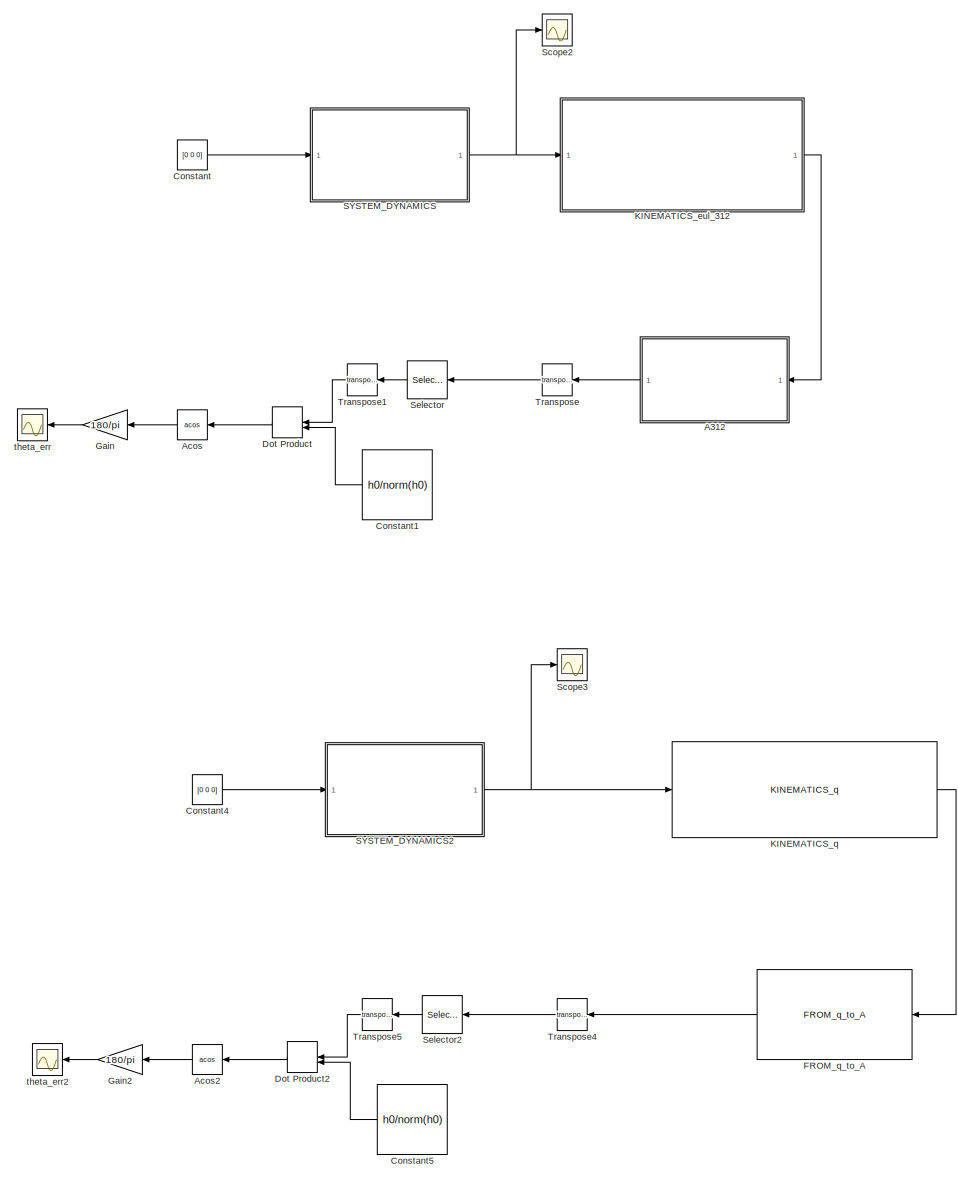
[diagram: root canvas - part 1/2, left side, full height]
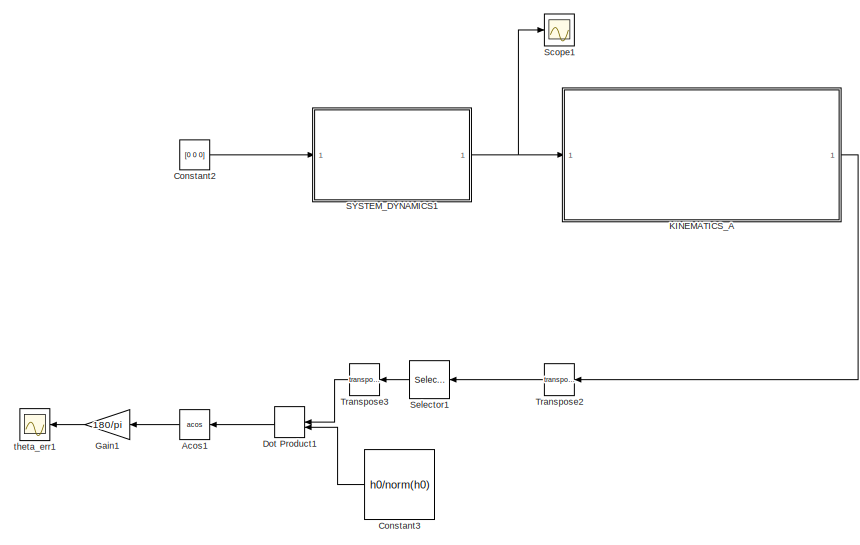
[diagram: root canvas - part 2/2, top right region]
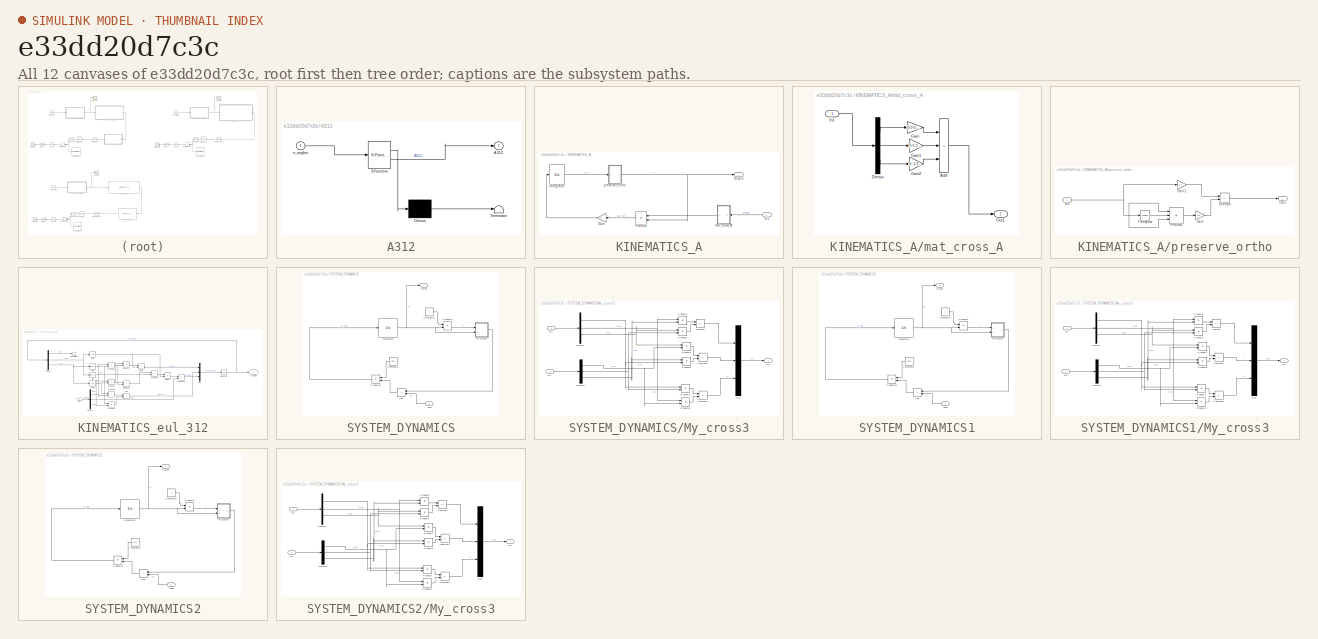
[diagram: thumbnail index - all 12 canvases of the model, root first then tree order]
MODEL slx_e33dd20d7c3c
KIND model
CONFIG AbsTol = auto
CONFIG EnableMultiTasking = off
CONFIG FixedStep = 0.01
CONFIG MaxStep = auto
CONFIG MinStep = auto
CONFIG RelTol = 1e-3
CONFIG SampleTimeConstraint = Unconstrained
CONFIG SolverName = ode8
CONFIG StartTime = 0.0
CONFIG StopTime = 100
BLOCK [SubSystem] A312
  ErrorFcn = Stateflow.Translate.translate
  PermitHierarchicalResolution = ExplicitOnly
  Ports = [1, 1]
  RequestExecContextInheritance = off
  SFBlockType = MATLAB Function
  TreatAsAtomicUnit = on
BLOCK [Demux] A312/ Demux 
  Outputs = 1
  Ports = [1, 1]
BLOCK [S-Function] A312/ SFunction 
  EnableBusSupport = on
  FunctionName = sf_sfun
  PortCounts = [1 2]
  Ports = [1, 2]
  SFcnIsStateOwnerBlock = off
  SFunctionDeploymentMode = off
  Tag = Stateflow S-Function 1
BLOCK [Terminator] A312/ Terminator 
BLOCK [Outport] A312/A312
BLOCK [Inport] A312/e_angles
BLOCK [Trigonometry] Acos
  Operator = acos
  Ports = [1, 1]
BLOCK [Trigonometry] Acos1
  Operator = acos
  Ports = [1, 1]
BLOCK [Trigonometry] Acos2
  Operator = acos
  Ports = [1, 1]
BLOCK [Constant] Constant
  Value = [0 0 0]
BLOCK [Constant] Constant1
  Value = h0/norm(h0)
BLOCK [Constant] Constant2
  Value = [0 0 0]
BLOCK [Constant] Constant3
  Value = h0/norm(h0)
BLOCK [Constant] Constant4
  Value = [0 0 0]
BLOCK [Constant] Constant5
  Value = h0/norm(h0)
BLOCK [DotProduct] Dot Product
  OutDataTypeStr = Inherit: Inherit via internal rule
BLOCK [DotProduct] Dot Product1
  OutDataTypeStr = Inherit: Inherit via internal rule
BLOCK [DotProduct] Dot Product2
  OutDataTypeStr = Inherit: Inherit via internal rule
BLOCK [Reference] FROM_q_to_A  REF=kinematic_transform/FROM_q_to_A  (lib defined in slx_aea597a4063a)
  Ports = [1, 1]
  SourceBlock = kinematic_transform/FROM_q_to_A
  SourceProductName = Kinematic Tranformation
  SourceType = SubSystem
BLOCK [Gain] Gain
  Gain = 180/pi
BLOCK [Gain] Gain1
  Gain = 180/pi
BLOCK [Gain] Gain2
  Gain = 180/pi
BLOCK [SubSystem] KINEMATICS_A
  Ports = [1, 1]
  RequestExecContextInheritance = off
BLOCK [Gain] KINEMATICS_A/Gain
  Gain = -1
BLOCK [Inport] KINEMATICS_A/In1
  IconDisplay = Signal name
BLOCK [Integrator] KINEMATICS_A/Integrator
  InitialCondition = A
  Ports = [1, 1]
BLOCK [Outport] KINEMATICS_A/Output
  IconDisplay = Signal name
BLOCK [Product] KINEMATICS_A/Product
  Multiplication = Matrix(*)
  Ports = [2, 1]
BLOCK [SubSystem] KINEMATICS_A/mat_cross_A
  Ports = [1, 1]
  RequestExecContextInheritance = off
BLOCK [Sum] KINEMATICS_A/mat_cross_A/Add
  IconShape = rectangular
  Inputs = +++
  Ports = [3, 1]
BLOCK [Demux] KINEMATICS_A/mat_cross_A/Demux
  Outputs = 3
  Ports = [1, 3]
BLOCK [Gain] KINEMATICS_A/mat_cross_A/Gain
  Gain = [0 0 0; 0 0 -1; 0 1 0]
BLOCK [Gain] KINEMATICS_A/mat_cross_A/Gain1
  Gain = [0 0 1; 0 0 0; -1 0 0]
BLOCK [Gain] KINEMATICS_A/mat_cross_A/Gain2
  Gain = [0 -1 0; 1 0 0; 0 0 0]
BLOCK [Inport] KINEMATICS_A/mat_cross_A/In1
BLOCK [Outport] KINEMATICS_A/mat_cross_A/Out1
BLOCK [SubSystem] KINEMATICS_A/preserve_ortho
  Ports = [1, 1]
  RequestExecContextInheritance = off
BLOCK [Gain] KINEMATICS_A/preserve_ortho/Gain
  Gain = 0.5
BLOCK [Gain] KINEMATICS_A/preserve_ortho/Gain1
  Gain = 1.5
BLOCK [Inport] KINEMATICS_A/preserve_ortho/In1
BLOCK [Outport] KINEMATICS_A/preserve_ortho/Out1
BLOCK [Product] KINEMATICS_A/preserve_ortho/Product1
  Inputs = 3
  Multiplication = Matrix(*)
  Ports = [3, 1]
BLOCK [Sum] KINEMATICS_A/preserve_ortho/Subtract
  IconShape = rectangular
  Inputs = +-
  Ports = [2, 1]
BLOCK [Math] KINEMATICS_A/preserve_ortho/Transpose
  Operator = transpose
  Ports = [1, 1]
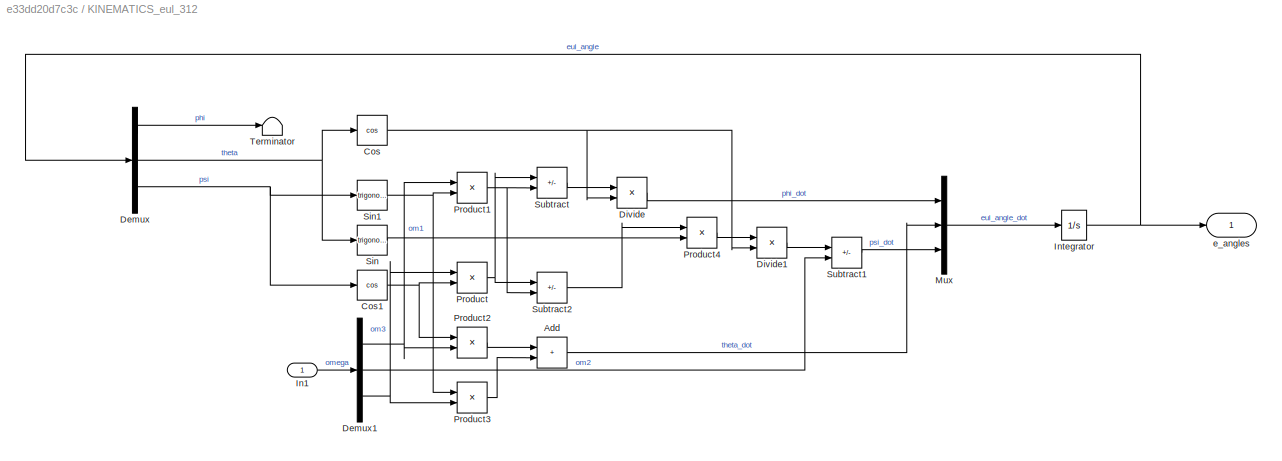
BLOCK [SubSystem] KINEMATICS_eul_312
  Ports = [1, 1]
  RequestExecContextInheritance = off
BLOCK [Sum] KINEMATICS_eul_312/Add
  IconShape = rectangular
  Ports = [2, 1]
BLOCK [Trigonometry] KINEMATICS_eul_312/Cos
  Operator = cos
  Ports = [1, 1]
BLOCK [Trigonometry] KINEMATICS_eul_312/Cos1
  Operator = cos
  Ports = [1, 1]
BLOCK [Demux] KINEMATICS_eul_312/Demux
  Outputs = 3
  Ports = [1, 3]
BLOCK [Demux] KINEMATICS_eul_312/Demux1
  Outputs = 3
  Ports = [1, 3]
BLOCK [Product] KINEMATICS_eul_312/Divide
  Inputs = */
  Ports = [2, 1]
BLOCK [Product] KINEMATICS_eul_312/Divide1
  Inputs = */
  Ports = [2, 1]
BLOCK [Inport] KINEMATICS_eul_312/In1
  IconDisplay = Signal name
BLOCK [Integrator] KINEMATICS_eul_312/Integrator
  InitialCondition = e_angles0
  Ports = [1, 1]
BLOCK [Mux] KINEMATICS_eul_312/Mux
  DisplayOption = bar
  Inputs = 3
  Ports = [3, 1]
BLOCK [Product] KINEMATICS_eul_312/Product
  Ports = [2, 1]
BLOCK [Product] KINEMATICS_eul_312/Product1
  Ports = [2, 1]
BLOCK [Product] KINEMATICS_eul_312/Product2
  Ports = [2, 1]
BLOCK [Product] KINEMATICS_eul_312/Product3
  Ports = [2, 1]
BLOCK [Product] KINEMATICS_eul_312/Product4
  Ports = [2, 1]
BLOCK [Trigonometry] KINEMATICS_eul_312/Sin
  Ports = [1, 1]
BLOCK [Trigonometry] KINEMATICS_eul_312/Sin1
  Ports = [1, 1]
BLOCK [Sum] KINEMATICS_eul_312/Subtract
  IconShape = rectangular
  Inputs = +-
  Ports = [2, 1]
BLOCK [Sum] KINEMATICS_eul_312/Subtract1
  IconShape = rectangular
  Inputs = -+
  Ports = [2, 1]
BLOCK [Sum] KINEMATICS_eul_312/Subtract2
  IconShape = rectangular
  Inputs = +-
  Ports = [2, 1]
BLOCK [Terminator] KINEMATICS_eul_312/Terminator
BLOCK [Outport] KINEMATICS_eul_312/e_angles
  IconDisplay = Signal name
BLOCK [Reference] KINEMATICS_q  REF=kinematics/KINEMATICS_q  (lib defined in mdl_2d95649a4485, slx_49f32b38500f, +2 more)
  Ports = [1, 1]
  SourceBlock = kinematics/KINEMATICS_q
  SourceType = SubSystem
BLOCK [SubSystem] SYSTEM_DYNAMICS
  Ports = [1, 1]
  RequestExecContextInheritance = off
BLOCK [Sum] SYSTEM_DYNAMICS/Add
  IconShape = rectangular
  Ports = [2, 1]
BLOCK [Constant] SYSTEM_DYNAMICS/Constant10
  Value = J
BLOCK [Constant] SYSTEM_DYNAMICS/Constant11
  Value = invJ
BLOCK [Inport] SYSTEM_DYNAMICS/Input
  IconDisplay = Signal name
BLOCK [Integrator] SYSTEM_DYNAMICS/Integrator6
  InitialCondition = omega0
  Ports = [1, 1]
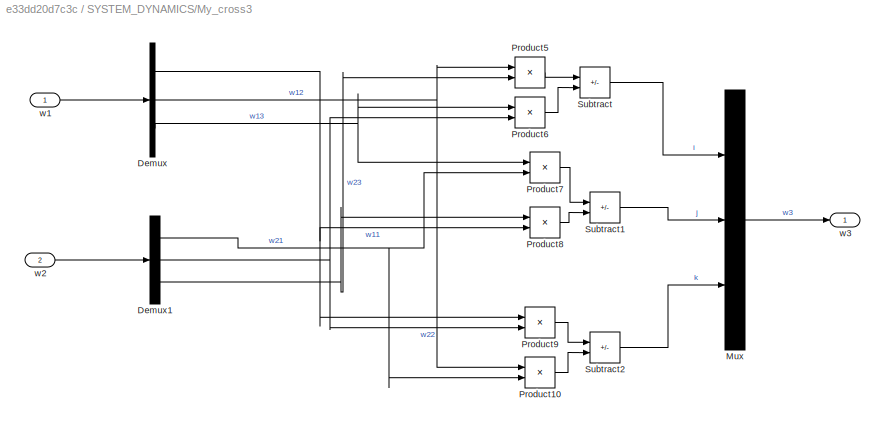
BLOCK [SubSystem] SYSTEM_DYNAMICS/My_cross3
  Ports = [2, 1]
  RequestExecContextInheritance = off
BLOCK [Demux] SYSTEM_DYNAMICS/My_cross3/Demux
  Outputs = 3
  Ports = [1, 3]
BLOCK [Demux] SYSTEM_DYNAMICS/My_cross3/Demux1
  Outputs = 3
  Ports = [1, 3]
BLOCK [Mux] SYSTEM_DYNAMICS/My_cross3/Mux
  DisplayOption = bar
  Inputs = 3
  Ports = [3, 1]
BLOCK [Product] SYSTEM_DYNAMICS/My_cross3/Product10
  Ports = [2, 1]
BLOCK [Product] SYSTEM_DYNAMICS/My_cross3/Product5
  Ports = [2, 1]
BLOCK [Product] SYSTEM_DYNAMICS/My_cross3/Product6
  Ports = [2, 1]
BLOCK [Product] SYSTEM_DYNAMICS/My_cross3/Product7
  Ports = [2, 1]
BLOCK [Product] SYSTEM_DYNAMICS/My_cross3/Product8
  Ports = [2, 1]
BLOCK [Product] SYSTEM_DYNAMICS/My_cross3/Product9
  Ports = [2, 1]
BLOCK [Sum] SYSTEM_DYNAMICS/My_cross3/Subtract
  IconShape = rectangular
  Inputs = +-
  Ports = [2, 1]
BLOCK [Sum] SYSTEM_DYNAMICS/My_cross3/Subtract1
  IconShape = rectangular
  Inputs = +-
  Ports = [2, 1]
BLOCK [Sum] SYSTEM_DYNAMICS/My_cross3/Subtract2
  IconShape = rectangular
  Inputs = +-
  Ports = [2, 1]
BLOCK [Inport] SYSTEM_DYNAMICS/My_cross3/w1
BLOCK [Inport] SYSTEM_DYNAMICS/My_cross3/w2
  Port = 2
BLOCK [Outport] SYSTEM_DYNAMICS/My_cross3/w3
BLOCK [Outport] SYSTEM_DYNAMICS/Output
  IconDisplay = Signal name
BLOCK [Product] SYSTEM_DYNAMICS/Product10
  Multiplication = Matrix(*)
  Ports = [2, 1]
BLOCK [Product] SYSTEM_DYNAMICS/Product9
  Multiplication = Matrix(*)
  Ports = [2, 1]
BLOCK [SubSystem] SYSTEM_DYNAMICS1
  Ports = [1, 1]
  RequestExecContextInheritance = off
BLOCK [Sum] SYSTEM_DYNAMICS1/Add
  IconShape = rectangular
  Ports = [2, 1]
BLOCK [Constant] SYSTEM_DYNAMICS1/Constant10
  Value = J
BLOCK [Constant] SYSTEM_DYNAMICS1/Constant11
  Value = invJ
BLOCK [Inport] SYSTEM_DYNAMICS1/Input
  IconDisplay = Signal name
BLOCK [Integrator] SYSTEM_DYNAMICS1/Integrator6
  InitialCondition = omega0
  Ports = [1, 1]
BLOCK [SubSystem] SYSTEM_DYNAMICS1/My_cross3
  Ports = [2, 1]
  RequestExecContextInheritance = off
BLOCK [Demux] SYSTEM_DYNAMICS1/My_cross3/Demux
  Outputs = 3
  Ports = [1, 3]
BLOCK [Demux] SYSTEM_DYNAMICS1/My_cross3/Demux1
  Outputs = 3
  Ports = [1, 3]
BLOCK [Mux] SYSTEM_DYNAMICS1/My_cross3/Mux
  DisplayOption = bar
  Inputs = 3
  Ports = [3, 1]
BLOCK [Product] SYSTEM_DYNAMICS1/My_cross3/Product10
  Ports = [2, 1]
BLOCK [Product] SYSTEM_DYNAMICS1/My_cross3/Product5
  Ports = [2, 1]
BLOCK [Product] SYSTEM_DYNAMICS1/My_cross3/Product6
  Ports = [2, 1]
BLOCK [Product] SYSTEM_DYNAMICS1/My_cross3/Product7
  Ports = [2, 1]
BLOCK [Product] SYSTEM_DYNAMICS1/My_cross3/Product8
  Ports = [2, 1]
BLOCK [Product] SYSTEM_DYNAMICS1/My_cross3/Product9
  Ports = [2, 1]
BLOCK [Sum] SYSTEM_DYNAMICS1/My_cross3/Subtract
  IconShape = rectangular
  Inputs = +-
  Ports = [2, 1]
BLOCK [Sum] SYSTEM_DYNAMICS1/My_cross3/Subtract1
  IconShape = rectangular
  Inputs = +-
  Ports = [2, 1]
BLOCK [Sum] SYSTEM_DYNAMICS1/My_cross3/Subtract2
  IconShape = rectangular
  Inputs = +-
  Ports = [2, 1]
BLOCK [Inport] SYSTEM_DYNAMICS1/My_cross3/w1
BLOCK [Inport] SYSTEM_DYNAMICS1/My_cross3/w2
  Port = 2
BLOCK [Outport] SYSTEM_DYNAMICS1/My_cross3/w3
BLOCK [Outport] SYSTEM_DYNAMICS1/Output
  IconDisplay = Signal name
BLOCK [Product] SYSTEM_DYNAMICS1/Product10
  Multiplication = Matrix(*)
  Ports = [2, 1]
BLOCK [Product] SYSTEM_DYNAMICS1/Product9
  Multiplication = Matrix(*)
  Ports = [2, 1]
BLOCK [SubSystem] SYSTEM_DYNAMICS2
  Ports = [1, 1]
  RequestExecContextInheritance = off
BLOCK [Sum] SYSTEM_DYNAMICS2/Add
  IconShape = rectangular
  Ports = [2, 1]
BLOCK [Constant] SYSTEM_DYNAMICS2/Constant10
  Value = J
BLOCK [Constant] SYSTEM_DYNAMICS2/Constant11
  Value = invJ
BLOCK [Inport] SYSTEM_DYNAMICS2/Input
  IconDisplay = Signal name
BLOCK [Integrator] SYSTEM_DYNAMICS2/Integrator6
  InitialCondition = omega0
  Ports = [1, 1]
BLOCK [SubSystem] SYSTEM_DYNAMICS2/My_cross3
  Ports = [2, 1]
  RequestExecContextInheritance = off
BLOCK [Demux] SYSTEM_DYNAMICS2/My_cross3/Demux
  Outputs = 3
  Ports = [1, 3]
BLOCK [Demux] SYSTEM_DYNAMICS2/My_cross3/Demux1
  Outputs = 3
  Ports = [1, 3]
BLOCK [Mux] SYSTEM_DYNAMICS2/My_cross3/Mux
  DisplayOption = bar
  Inputs = 3
  Ports = [3, 1]
BLOCK [Product] SYSTEM_DYNAMICS2/My_cross3/Product10
  Ports = [2, 1]
BLOCK [Product] SYSTEM_DYNAMICS2/My_cross3/Product5
  Ports = [2, 1]
BLOCK [Product] SYSTEM_DYNAMICS2/My_cross3/Product6
  Ports = [2, 1]
BLOCK [Product] SYSTEM_DYNAMICS2/My_cross3/Product7
  Ports = [2, 1]
BLOCK [Product] SYSTEM_DYNAMICS2/My_cross3/Product8
  Ports = [2, 1]
BLOCK [Product] SYSTEM_DYNAMICS2/My_cross3/Product9
  Ports = [2, 1]
BLOCK [Sum] SYSTEM_DYNAMICS2/My_cross3/Subtract
  IconShape = rectangular
  Inputs = +-
  Ports = [2, 1]
BLOCK [Sum] SYSTEM_DYNAMICS2/My_cross3/Subtract1
  IconShape = rectangular
  Inputs = +-
  Ports = [2, 1]
BLOCK [Sum] SYSTEM_DYNAMICS2/My_cross3/Subtract2
  IconShape = rectangular
  Inputs = +-
  Ports = [2, 1]
BLOCK [Inport] SYSTEM_DYNAMICS2/My_cross3/w1
BLOCK [Inport] SYSTEM_DYNAMICS2/My_cross3/w2
  Port = 2
BLOCK [Outport] SYSTEM_DYNAMICS2/My_cross3/w3
BLOCK [Outport] SYSTEM_DYNAMICS2/Output
  IconDisplay = Signal name
BLOCK [Product] SYSTEM_DYNAMICS2/Product10
  Multiplication = Matrix(*)
  Ports = [2, 1]
BLOCK [Product] SYSTEM_DYNAMICS2/Product9
  Multiplication = Matrix(*)
  Ports = [2, 1]
BLOCK [Scope] Scope1
  Floating = off
  NumInputPorts = 1
  Ports = [1]
  ScopeSpecificationString = Simulink.scopes.TimeScopeBlockCfg('CurrentConfiguration', extmgr.ConfigurationSet(extmgr.Configuration('Core','General UI',true),extmgr.Configuration('Core','Source UI',true),extmgr.Configuration('Sources','WiredSimulink',true,'DataLoggingVariableName','ScopeData1'),extmgr.Configuration('Visuals','Time Domain',true,'SerializedDisplays',{struct('MinYLimReal','-0.27762','MaxYLimReal','0.90691','YLab...<+1446ch>
BLOCK [Scope] Scope2
  Floating = off
  NumInputPorts = 1
  Ports = [1]
  ScopeSpecificationString = Simulink.scopes.TimeScopeBlockCfg('CurrentConfiguration', extmgr.ConfigurationSet(extmgr.Configuration('Core','General UI',true),extmgr.Configuration('Core','Source UI',true),extmgr.Configuration('Sources','WiredSimulink',true,'DataLoggingVariableName','ScopeData1'),extmgr.Configuration('Visuals','Time Domain',true,'SerializedDisplays',{struct('MinYLimReal','-0.27762','MaxYLimReal','0.90691','YLab...<+1443ch>
BLOCK [Scope] Scope3
  Floating = off
  NumInputPorts = 1
  Ports = [1]
  ScopeSpecificationString = Simulink.scopes.TimeScopeBlockCfg('CurrentConfiguration', extmgr.ConfigurationSet(extmgr.Configuration('Core','General UI',true),extmgr.Configuration('Core','Source UI',true),extmgr.Configuration('Sources','WiredSimulink',true,'DataLoggingVariableName','ScopeData1'),extmgr.Configuration('Visuals','Time Domain',true,'SerializedDisplays',{struct('MinYLimReal','-0.27762','MaxYLimReal','0.90691','YLab...<+1446ch>
BLOCK [Selector] Selector
  IndexOptions = Index vector (dialog),Select all
  Indices = 1,1
  InputPortWidth = 3
  NumberOfDimensions = 2
  OutputSizes = 1,1
  Ports = [1, 1]
BLOCK [Selector] Selector1
  IndexOptions = Index vector (dialog),Select all
  Indices = 1,1
  InputPortWidth = 3
  NumberOfDimensions = 2
  OutputSizes = 1,1
  Ports = [1, 1]
BLOCK [Selector] Selector2
  IndexOptions = Index vector (dialog),Select all
  Indices = 1,1
  InputPortWidth = 3
  NumberOfDimensions = 2
  OutputSizes = 1,1
  Ports = [1, 1]
BLOCK [Math] Transpose
  Operator = transpose
  Ports = [1, 1]
BLOCK [Math] Transpose1
  Operator = transpose
  Ports = [1, 1]
BLOCK [Math] Transpose2
  Operator = transpose
  Ports = [1, 1]
BLOCK [Math] Transpose3
  Operator = transpose
  Ports = [1, 1]
BLOCK [Math] Transpose4
  Operator = transpose
  Ports = [1, 1]
BLOCK [Math] Transpose5
  Operator = transpose
  Ports = [1, 1]
BLOCK [Scope] theta_err
  Floating = off
  NumInputPorts = 1
  Ports = [1]
  ScopeSpecificationString = Simulink.scopes.TimeScopeBlockCfg('CurrentConfiguration', extmgr.ConfigurationSet(extmgr.Configuration('Core','General UI',true),extmgr.Configuration('Core','Source UI',true),extmgr.Configuration('Sources','WiredSimulink',true),extmgr.Configuration('Visuals','Time Domain',true,'SerializedDisplays',{struct('MinYLimReal','-1.60132','MaxYLimReal','14.41185','YLabelReal','','MinYLimMag','0.00000','Max...<+1655ch>
BLOCK [Scope] theta_err1
  Floating = off
  NumInputPorts = 1
  Ports = [1]
  ScopeSpecificationString = Simulink.scopes.TimeScopeBlockCfg('CurrentConfiguration', extmgr.ConfigurationSet(extmgr.Configuration('Core','General UI',true),extmgr.Configuration('Core','Source UI',true),extmgr.Configuration('Sources','WiredSimulink',true,'DataLoggingVariableName','ScopeData2'),extmgr.Configuration('Visuals','Time Domain',true,'SerializedDisplays',{struct('MinYLimReal','-1.50374','MaxYLimReal','13.53365','YLa...<+1695ch>
BLOCK [Scope] theta_err2
  Floating = off
  NumInputPorts = 1
  Ports = [1]
  ScopeSpecificationString = Simulink.scopes.TimeScopeBlockCfg('CurrentConfiguration', extmgr.ConfigurationSet(extmgr.Configuration('Core','General UI',true),extmgr.Configuration('Core','Source UI',true),extmgr.Configuration('Sources','WiredSimulink',true,'DataLoggingVariableName','ScopeData2'),extmgr.Configuration('Visuals','Time Domain',true,'SerializedDisplays',{struct('MinYLimReal','-1.50374','MaxYLimReal','13.53365','YLa...<+1695ch>
LINE A312:1 -> Transpose:1
LINE Acos1:1 -> Gain1:1
LINE Acos2:1 -> Gain2:1
LINE Acos:1 -> Gain:1
LINE Constant1:1 -> Dot Product:2
LINE Constant2:1 -> SYSTEM_DYNAMICS1:1
LINE Constant3:1 -> Dot Product1:2
LINE Constant4:1 -> SYSTEM_DYNAMICS2:1
LINE Constant5:1 -> Dot Product2:2
LINE Constant:1 -> SYSTEM_DYNAMICS:1
LINE Dot Product1:1 -> Acos1:1
LINE Dot Product2:1 -> Acos2:1
LINE Dot Product:1 -> Acos:1
LINE FROM_q_to_A:1 -> Transpose4:1
LINE Gain1:1 -> theta_err1:1
LINE Gain2:1 -> theta_err2:1
LINE Gain:1 -> theta_err:1
LINE KINEMATICS_A/Gain:1 -> KINEMATICS_A/Integrator:1
LINE KINEMATICS_A/In1:1 -> KINEMATICS_A/mat_cross_A:1
LINE KINEMATICS_A/Integrator:1 -> KINEMATICS_A/preserve_ortho:1
LINE KINEMATICS_A/Product:1 -> KINEMATICS_A/Gain:1
LINE KINEMATICS_A/mat_cross_A/Add:1 -> KINEMATICS_A/mat_cross_A/Out1:1
LINE KINEMATICS_A/mat_cross_A/Demux:1 -> KINEMATICS_A/mat_cross_A/Gain:1
LINE KINEMATICS_A/mat_cross_A/Demux:2 -> KINEMATICS_A/mat_cross_A/Gain1:1
LINE KINEMATICS_A/mat_cross_A/Demux:3 -> KINEMATICS_A/mat_cross_A/Gain2:1
LINE KINEMATICS_A/mat_cross_A/Gain1:1 -> KINEMATICS_A/mat_cross_A/Add:2
LINE KINEMATICS_A/mat_cross_A/Gain2:1 -> KINEMATICS_A/mat_cross_A/Add:3
LINE KINEMATICS_A/mat_cross_A/Gain:1 -> KINEMATICS_A/mat_cross_A/Add:1
LINE KINEMATICS_A/mat_cross_A/In1:1 -> KINEMATICS_A/mat_cross_A/Demux:1
LINE KINEMATICS_A/mat_cross_A:1 -> KINEMATICS_A/Product:1
LINE KINEMATICS_A/preserve_ortho/Gain1:1 -> KINEMATICS_A/preserve_ortho/Subtract:1
LINE KINEMATICS_A/preserve_ortho/Gain:1 -> KINEMATICS_A/preserve_ortho/Subtract:2
NET KINEMATICS_A/preserve_ortho/In1:1 -> KINEMATICS_A/preserve_ortho/Gain1:1, KINEMATICS_A/preserve_ortho/Product1:1, KINEMATICS_A/preserve_ortho/Product1:3, KINEMATICS_A/preserve_ortho/Transpose:1
LINE KINEMATICS_A/preserve_ortho/Product1:1 -> KINEMATICS_A/preserve_ortho/Gain:1
LINE KINEMATICS_A/preserve_ortho/Subtract:1 -> KINEMATICS_A/preserve_ortho/Out1:1
LINE KINEMATICS_A/preserve_ortho/Transpose:1 -> KINEMATICS_A/preserve_ortho/Product1:2
NET KINEMATICS_A/preserve_ortho:1 -> KINEMATICS_A/Output:1, KINEMATICS_A/Product:2
LINE KINEMATICS_A:1 -> Transpose2:1
LINE KINEMATICS_eul_312/Add:1 -> KINEMATICS_eul_312/Mux:2
NET KINEMATICS_eul_312/Cos1:1 -> KINEMATICS_eul_312/Product2:1, KINEMATICS_eul_312/Product:2
NET KINEMATICS_eul_312/Cos:1 -> KINEMATICS_eul_312/Divide1:2, KINEMATICS_eul_312/Divide:2
NET KINEMATICS_eul_312/Demux1:1 -> KINEMATICS_eul_312/Product1:1, KINEMATICS_eul_312/Product2:2
LINE KINEMATICS_eul_312/Demux1:2 -> KINEMATICS_eul_312/Subtract1:2
NET KINEMATICS_eul_312/Demux1:3 -> KINEMATICS_eul_312/Product3:2, KINEMATICS_eul_312/Product:1
LINE KINEMATICS_eul_312/Demux:1 -> KINEMATICS_eul_312/Terminator:1
NET KINEMATICS_eul_312/Demux:2 -> KINEMATICS_eul_312/Cos:1, KINEMATICS_eul_312/Sin:1
NET KINEMATICS_eul_312/Demux:3 -> KINEMATICS_eul_312/Cos1:1, KINEMATICS_eul_312/Sin1:1
LINE KINEMATICS_eul_312/Divide1:1 -> KINEMATICS_eul_312/Subtract1:1
LINE KINEMATICS_eul_312/Divide:1 -> KINEMATICS_eul_312/Mux:1
LINE KINEMATICS_eul_312/In1:1 -> KINEMATICS_eul_312/Demux1:1
NET KINEMATICS_eul_312/Integrator:1 -> KINEMATICS_eul_312/Demux:1, KINEMATICS_eul_312/e_angles:1
LINE KINEMATICS_eul_312/Mux:1 -> KINEMATICS_eul_312/Integrator:1
NET KINEMATICS_eul_312/Product1:1 -> KINEMATICS_eul_312/Subtract2:2, KINEMATICS_eul_312/Subtract:2
LINE KINEMATICS_eul_312/Product2:1 -> KINEMATICS_eul_312/Add:1
LINE KINEMATICS_eul_312/Product3:1 -> KINEMATICS_eul_312/Add:2
LINE KINEMATICS_eul_312/Product4:1 -> KINEMATICS_eul_312/Divide1:1
NET KINEMATICS_eul_312/Product:1 -> KINEMATICS_eul_312/Subtract2:1, KINEMATICS_eul_312/Subtract:1
NET KINEMATICS_eul_312/Sin1:1 -> KINEMATICS_eul_312/Product1:2, KINEMATICS_eul_312/Product3:1
LINE KINEMATICS_eul_312/Sin:1 -> KINEMATICS_eul_312/Product4:2
LINE KINEMATICS_eul_312/Subtract1:1 -> KINEMATICS_eul_312/Mux:3
LINE KINEMATICS_eul_312/Subtract2:1 -> KINEMATICS_eul_312/Product4:1
LINE KINEMATICS_eul_312/Subtract:1 -> KINEMATICS_eul_312/Divide:1
LINE KINEMATICS_eul_312:1 -> A312:1
LINE KINEMATICS_q:1 -> FROM_q_to_A:1
LINE SYSTEM_DYNAMICS/Add:1 -> SYSTEM_DYNAMICS/Product10:2
LINE SYSTEM_DYNAMICS/Constant10:1 -> SYSTEM_DYNAMICS/Product9:1
LINE SYSTEM_DYNAMICS/Constant11:1 -> SYSTEM_DYNAMICS/Product10:1
LINE SYSTEM_DYNAMICS/Input:1 -> SYSTEM_DYNAMICS/Add:2
NET SYSTEM_DYNAMICS/Integrator6:1 -> SYSTEM_DYNAMICS/My_cross3:2, SYSTEM_DYNAMICS/Output:1, SYSTEM_DYNAMICS/Product9:2
NET SYSTEM_DYNAMICS/My_cross3/Demux1:1 -> SYSTEM_DYNAMICS/My_cross3/Product10:2, SYSTEM_DYNAMICS/My_cross3/Product7:2
NET SYSTEM_DYNAMICS/My_cross3/Demux1:2 -> SYSTEM_DYNAMICS/My_cross3/Product6:2, SYSTEM_DYNAMICS/My_cross3/Product9:2
NET SYSTEM_DYNAMICS/My_cross3/Demux1:3 -> SYSTEM_DYNAMICS/My_cross3/Product5:2, SYSTEM_DYNAMICS/My_cross3/Product8:1
NET SYSTEM_DYNAMICS/My_cross3/Demux:1 -> SYSTEM_DYNAMICS/My_cross3/Product8:2, SYSTEM_DYNAMICS/My_cross3/Product9:1
NET SYSTEM_DYNAMICS/My_cross3/Demux:2 -> SYSTEM_DYNAMICS/My_cross3/Product10:1, SYSTEM_DYNAMICS/My_cross3/Product5:1
NET SYSTEM_DYNAMICS/My_cross3/Demux:3 -> SYSTEM_DYNAMICS/My_cross3/Product6:1, SYSTEM_DYNAMICS/My_cross3/Product7:1
LINE SYSTEM_DYNAMICS/My_cross3/Mux:1 -> SYSTEM_DYNAMICS/My_cross3/w3:1
LINE SYSTEM_DYNAMICS/My_cross3/Product10:1 -> SYSTEM_DYNAMICS/My_cross3/Subtract2:2
LINE SYSTEM_DYNAMICS/My_cross3/Product5:1 -> SYSTEM_DYNAMICS/My_cross3/Subtract:1
LINE SYSTEM_DYNAMICS/My_cross3/Product6:1 -> SYSTEM_DYNAMICS/My_cross3/Subtract:2
LINE SYSTEM_DYNAMICS/My_cross3/Product7:1 -> SYSTEM_DYNAMICS/My_cross3/Subtract1:1
LINE SYSTEM_DYNAMICS/My_cross3/Product8:1 -> SYSTEM_DYNAMICS/My_cross3/Subtract1:2
LINE SYSTEM_DYNAMICS/My_cross3/Product9:1 -> SYSTEM_DYNAMICS/My_cross3/Subtract2:1
LINE SYSTEM_DYNAMICS/My_cross3/Subtract1:1 -> SYSTEM_DYNAMICS/My_cross3/Mux:2
LINE SYSTEM_DYNAMICS/My_cross3/Subtract2:1 -> SYSTEM_DYNAMICS/My_cross3/Mux:3
LINE SYSTEM_DYNAMICS/My_cross3/Subtract:1 -> SYSTEM_DYNAMICS/My_cross3/Mux:1
LINE SYSTEM_DYNAMICS/My_cross3/w1:1 -> SYSTEM_DYNAMICS/My_cross3/Demux:1
LINE SYSTEM_DYNAMICS/My_cross3/w2:1 -> SYSTEM_DYNAMICS/My_cross3/Demux1:1
LINE SYSTEM_DYNAMICS/My_cross3:1 -> SYSTEM_DYNAMICS/Add:1
LINE SYSTEM_DYNAMICS/Product10:1 -> SYSTEM_DYNAMICS/Integrator6:1
LINE SYSTEM_DYNAMICS/Product9:1 -> SYSTEM_DYNAMICS/My_cross3:1
LINE SYSTEM_DYNAMICS1/Add:1 -> SYSTEM_DYNAMICS1/Product10:2
LINE SYSTEM_DYNAMICS1/Constant10:1 -> SYSTEM_DYNAMICS1/Product9:1
LINE SYSTEM_DYNAMICS1/Constant11:1 -> SYSTEM_DYNAMICS1/Product10:1
LINE SYSTEM_DYNAMICS1/Input:1 -> SYSTEM_DYNAMICS1/Add:2
NET SYSTEM_DYNAMICS1/Integrator6:1 -> SYSTEM_DYNAMICS1/My_cross3:2, SYSTEM_DYNAMICS1/Output:1, SYSTEM_DYNAMICS1/Product9:2
NET SYSTEM_DYNAMICS1/My_cross3/Demux1:1 -> SYSTEM_DYNAMICS1/My_cross3/Product10:2, SYSTEM_DYNAMICS1/My_cross3/Product7:2
NET SYSTEM_DYNAMICS1/My_cross3/Demux1:2 -> SYSTEM_DYNAMICS1/My_cross3/Product6:2, SYSTEM_DYNAMICS1/My_cross3/Product9:2
NET SYSTEM_DYNAMICS1/My_cross3/Demux1:3 -> SYSTEM_DYNAMICS1/My_cross3/Product5:2, SYSTEM_DYNAMICS1/My_cross3/Product8:1
NET SYSTEM_DYNAMICS1/My_cross3/Demux:1 -> SYSTEM_DYNAMICS1/My_cross3/Product8:2, SYSTEM_DYNAMICS1/My_cross3/Product9:1
NET SYSTEM_DYNAMICS1/My_cross3/Demux:2 -> SYSTEM_DYNAMICS1/My_cross3/Product10:1, SYSTEM_DYNAMICS1/My_cross3/Product5:1
NET SYSTEM_DYNAMICS1/My_cross3/Demux:3 -> SYSTEM_DYNAMICS1/My_cross3/Product6:1, SYSTEM_DYNAMICS1/My_cross3/Product7:1
LINE SYSTEM_DYNAMICS1/My_cross3/Mux:1 -> SYSTEM_DYNAMICS1/My_cross3/w3:1
LINE SYSTEM_DYNAMICS1/My_cross3/Product10:1 -> SYSTEM_DYNAMICS1/My_cross3/Subtract2:2
LINE SYSTEM_DYNAMICS1/My_cross3/Product5:1 -> SYSTEM_DYNAMICS1/My_cross3/Subtract:1
LINE SYSTEM_DYNAMICS1/My_cross3/Product6:1 -> SYSTEM_DYNAMICS1/My_cross3/Subtract:2
LINE SYSTEM_DYNAMICS1/My_cross3/Product7:1 -> SYSTEM_DYNAMICS1/My_cross3/Subtract1:1
LINE SYSTEM_DYNAMICS1/My_cross3/Product8:1 -> SYSTEM_DYNAMICS1/My_cross3/Subtract1:2
LINE SYSTEM_DYNAMICS1/My_cross3/Product9:1 -> SYSTEM_DYNAMICS1/My_cross3/Subtract2:1
LINE SYSTEM_DYNAMICS1/My_cross3/Subtract1:1 -> SYSTEM_DYNAMICS1/My_cross3/Mux:2
LINE SYSTEM_DYNAMICS1/My_cross3/Subtract2:1 -> SYSTEM_DYNAMICS1/My_cross3/Mux:3
LINE SYSTEM_DYNAMICS1/My_cross3/Subtract:1 -> SYSTEM_DYNAMICS1/My_cross3/Mux:1
LINE SYSTEM_DYNAMICS1/My_cross3/w1:1 -> SYSTEM_DYNAMICS1/My_cross3/Demux:1
LINE SYSTEM_DYNAMICS1/My_cross3/w2:1 -> SYSTEM_DYNAMICS1/My_cross3/Demux1:1
LINE SYSTEM_DYNAMICS1/My_cross3:1 -> SYSTEM_DYNAMICS1/Add:1
LINE SYSTEM_DYNAMICS1/Product10:1 -> SYSTEM_DYNAMICS1/Integrator6:1
LINE SYSTEM_DYNAMICS1/Product9:1 -> SYSTEM_DYNAMICS1/My_cross3:1
NET SYSTEM_DYNAMICS1:1 -> KINEMATICS_A:1, Scope1:1
LINE SYSTEM_DYNAMICS2/Add:1 -> SYSTEM_DYNAMICS2/Product10:2
LINE SYSTEM_DYNAMICS2/Constant10:1 -> SYSTEM_DYNAMICS2/Product9:1
LINE SYSTEM_DYNAMICS2/Constant11:1 -> SYSTEM_DYNAMICS2/Product10:1
LINE SYSTEM_DYNAMICS2/Input:1 -> SYSTEM_DYNAMICS2/Add:2
NET SYSTEM_DYNAMICS2/Integrator6:1 -> SYSTEM_DYNAMICS2/My_cross3:2, SYSTEM_DYNAMICS2/Output:1, SYSTEM_DYNAMICS2/Product9:2
NET SYSTEM_DYNAMICS2/My_cross3/Demux1:1 -> SYSTEM_DYNAMICS2/My_cross3/Product10:2, SYSTEM_DYNAMICS2/My_cross3/Product7:2
NET SYSTEM_DYNAMICS2/My_cross3/Demux1:2 -> SYSTEM_DYNAMICS2/My_cross3/Product6:2, SYSTEM_DYNAMICS2/My_cross3/Product9:2
NET SYSTEM_DYNAMICS2/My_cross3/Demux1:3 -> SYSTEM_DYNAMICS2/My_cross3/Product5:2, SYSTEM_DYNAMICS2/My_cross3/Product8:1
NET SYSTEM_DYNAMICS2/My_cross3/Demux:1 -> SYSTEM_DYNAMICS2/My_cross3/Product8:2, SYSTEM_DYNAMICS2/My_cross3/Product9:1
NET SYSTEM_DYNAMICS2/My_cross3/Demux:2 -> SYSTEM_DYNAMICS2/My_cross3/Product10:1, SYSTEM_DYNAMICS2/My_cross3/Product5:1
NET SYSTEM_DYNAMICS2/My_cross3/Demux:3 -> SYSTEM_DYNAMICS2/My_cross3/Product6:1, SYSTEM_DYNAMICS2/My_cross3/Product7:1
LINE SYSTEM_DYNAMICS2/My_cross3/Mux:1 -> SYSTEM_DYNAMICS2/My_cross3/w3:1
LINE SYSTEM_DYNAMICS2/My_cross3/Product10:1 -> SYSTEM_DYNAMICS2/My_cross3/Subtract2:2
LINE SYSTEM_DYNAMICS2/My_cross3/Product5:1 -> SYSTEM_DYNAMICS2/My_cross3/Subtract:1
LINE SYSTEM_DYNAMICS2/My_cross3/Product6:1 -> SYSTEM_DYNAMICS2/My_cross3/Subtract:2
LINE SYSTEM_DYNAMICS2/My_cross3/Product7:1 -> SYSTEM_DYNAMICS2/My_cross3/Subtract1:1
LINE SYSTEM_DYNAMICS2/My_cross3/Product8:1 -> SYSTEM_DYNAMICS2/My_cross3/Subtract1:2
LINE SYSTEM_DYNAMICS2/My_cross3/Product9:1 -> SYSTEM_DYNAMICS2/My_cross3/Subtract2:1
LINE SYSTEM_DYNAMICS2/My_cross3/Subtract1:1 -> SYSTEM_DYNAMICS2/My_cross3/Mux:2
LINE SYSTEM_DYNAMICS2/My_cross3/Subtract2:1 -> SYSTEM_DYNAMICS2/My_cross3/Mux:3
LINE SYSTEM_DYNAMICS2/My_cross3/Subtract:1 -> SYSTEM_DYNAMICS2/My_cross3/Mux:1
LINE SYSTEM_DYNAMICS2/My_cross3/w1:1 -> SYSTEM_DYNAMICS2/My_cross3/Demux:1
LINE SYSTEM_DYNAMICS2/My_cross3/w2:1 -> SYSTEM_DYNAMICS2/My_cross3/Demux1:1
LINE SYSTEM_DYNAMICS2/My_cross3:1 -> SYSTEM_DYNAMICS2/Add:1
LINE SYSTEM_DYNAMICS2/Product10:1 -> SYSTEM_DYNAMICS2/Integrator6:1
LINE SYSTEM_DYNAMICS2/Product9:1 -> SYSTEM_DYNAMICS2/My_cross3:1
NET SYSTEM_DYNAMICS2:1 -> KINEMATICS_q:1, Scope3:1
NET SYSTEM_DYNAMICS:1 -> KINEMATICS_eul_312:1, Scope2:1
LINE Selector1:1 -> Transpose3:1
LINE Selector2:1 -> Transpose5:1
LINE Selector:1 -> Transpose1:1
LINE Transpose1:1 -> Dot Product:1
LINE Transpose2:1 -> Selector1:1
LINE Transpose3:1 -> Dot Product1:1
LINE Transpose4:1 -> Selector2:1
LINE Transpose5:1 -> Dot Product2:1
LINE Transpose:1 -> Selector:1
note: NET lines group one-source signal fan-out (src -> all destinations, sorted); 1:1 wires keep LINE
CHART A312 states=1 transitions=1
  STATE_LABEL 'eML_blk_kernel()'
  STATE_LABEL 'SCRIPT:\nfunction A312 = FROM_e_angles_to_A(e_angles)\nphi = e_angles(1);\ntheta = e_angles(2);\npsi = e_angles(3);\nA312 = [cos(psi)*cos(phi)-sin(psi)*sin(phi)*sin(theta), cos(psi)*sin(phi) + sin(psi)*cos(phi)*sin(theta), -sin(psi)*cos(theta);\n     -sin(phi)*cos(theta), cos(phi)*cos(theta), sin(theta);\n     sin(psi)*cos(phi)+cos(psi)*sin(phi)*sin(theta), sin(psi)*sin(phi)-cos(psi)*cos(phi)*sin(theta),...<+27ch>'
CHART  states=0 transitions=0
